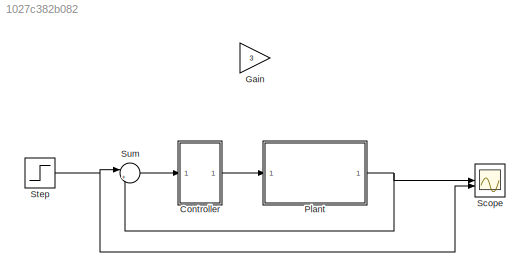
MODEL slx_1027c382b082
KIND model
CONFIG AbsTol = auto
CONFIG EnableMultiTasking = off
CONFIG FixedStep = auto
CONFIG MaxStep = auto
CONFIG MinStep = auto
CONFIG RelTol = 1e-3
CONFIG SampleTimeConstraint = Unconstrained
CONFIG SolverName = VariableStepAuto
CONFIG StartTime = 0.0
CONFIG StopTime = 30
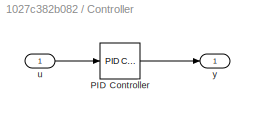
BLOCK [SubSystem] Controller
BLOCK [Reference] Controller/PID Controller  REF=slpidlib/PID Controller
  LibrarySourceBlock = simulink/Continuous/PID Controller
  SourceBlock = slpidlib/PID Controller
  SourceType = PID 1dof
BLOCK [Inport] Controller/u
  SampleTime = 0.1
BLOCK [Outport] Controller/y
BLOCK [Gain] Gain
  Commented = on
  Gain = 3
BLOCK [ModelReference] Plant
  ModelNameDialog = Plant
  ModelReferenceVersion = 1.3
BLOCK [Scope] Scope
  Floating = off
  NumInputPorts = 2
  ScopeSpecificationString = Simulink.scopes.TimeScopeBlockCfg('CurrentConfiguration', extmgr.ConfigurationSet(extmgr.Configuration('Core','General UI',true),extmgr.Configuration('Core','Source UI',true),extmgr.Configuration('Sources','WiredSimulink',true),extmgr.Configuration('Visuals','Time Domain',true,'SerializedDisplays',{struct('MinYLimReal','-0.12973','MaxYLimReal','1.1676','YLabelReal','','MinYLimMag','0.00000','MaxYL...<+1361ch>
BLOCK [Step] Step
  SampleTime = .1
BLOCK [Sum] Sum
  Inputs = |+-
LINE Controller/PID Controller:1 -> Controller/y:1
LINE Controller/u:1 -> Controller/PID Controller:1
LINE Controller:1 -> Plant:1
NET Plant:1 -> Scope:1, Sum:2
NET Step:1 -> Scope:2, Sum:1
LINE Sum:1 -> Controller:1
note: NET lines group one-source signal fan-out (src -> all destinations, sorted); 1:1 wires keep LINE
